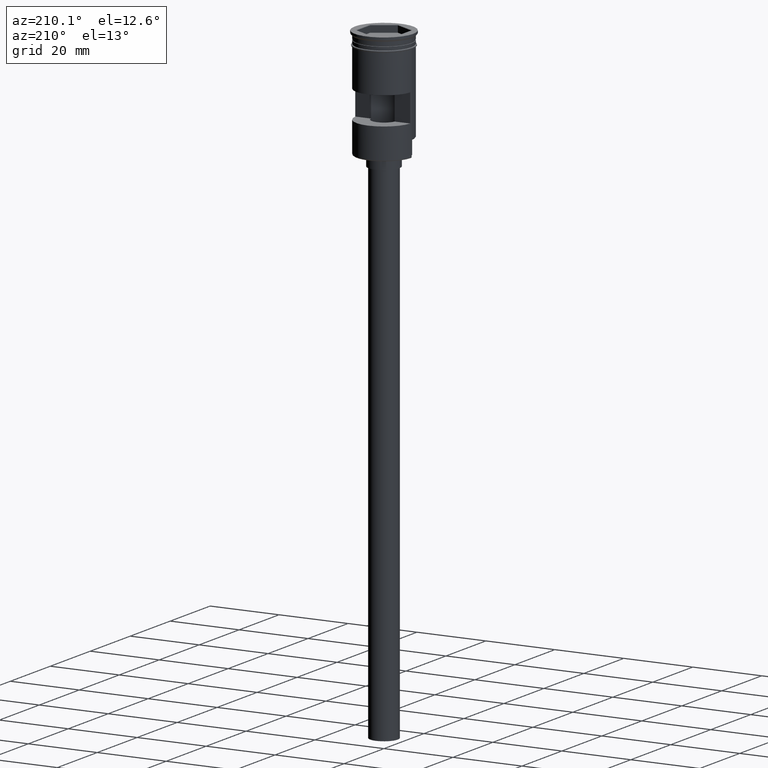
[diagram: clean part render]
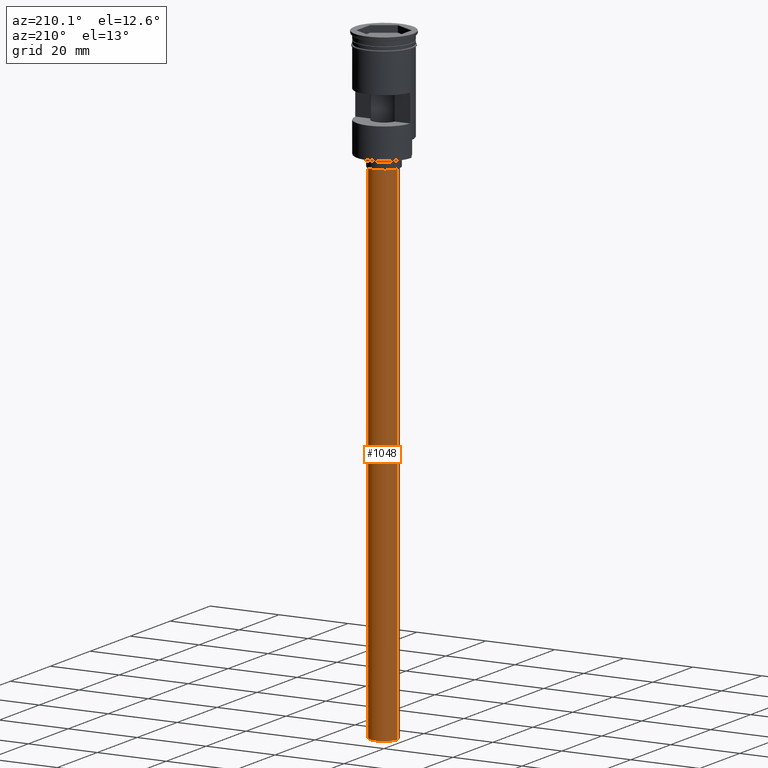
[diagram: same view with one face highlighted and labeled with its STEP entity id]
A machine part, auxiliary view. The second image highlights one B-rep face of the part: STEP entity #1048.
In plain terms, the highlighted cylindrical surface (edge-blend (fillet) strip) has radius 4 mm, axis along (-0, -0, 1).
Its self-contained STEP definition (entity closure, byte-faithful):
#14 = CIRCLE ( 'NONE', #709, 4.000000000000000000 ) ;
#111 = ORIENTED_EDGE ( 'NONE', *, *, #1323, .T. ) ;
#122 = DIRECTION ( 'NONE',  ( -1.000000000000000000, 0.000000000000000000, 0.000000000000000000 ) ) ;
#125 = DIRECTION ( 'NONE',  ( -1.000000000000000000, 0.000000000000000000, 0.000000000000000000 ) ) ;
#149 = DIRECTION ( 'NONE',  ( -0.000000000000000000, -0.000000000000000000, 1.000000000000000000 ) ) ;
#191 = DIRECTION ( 'NONE',  ( -0.000000000000000000, -0.000000000000000000, 1.000000000000000000 ) ) ;
#208 = CARTESIAN_POINT ( 'NONE',  ( -4.000000000000000000, 4.898587196589412829E-16, -35.00000000000000000 ) ) ;
#338 = VERTEX_POINT ( 'NONE', #806 ) ;
#394 = VERTEX_POINT ( 'NONE', #427 ) ;
#411 = AXIS2_PLACEMENT_3D ( 'NONE', #1522, #417, #125 ) ;
#417 = DIRECTION ( 'NONE',  ( 0.000000000000000000, 0.000000000000000000, -1.000000000000000000 ) ) ;
#427 = CARTESIAN_POINT ( 'NONE',  ( -4.000000000000000000, 4.898587196589412829E-16, -182.0000000000000000 ) ) ;
#576 = VERTEX_POINT ( 'NONE', #208 ) ;
#600 = ORIENTED_EDGE ( 'NONE', *, *, #1294, .T. ) ;
#614 = VECTOR ( 'NONE', #882, 1000.000000000000000 ) ;
#627 = CARTESIAN_POINT ( 'NONE',  ( 4.000000000000000000, 0.000000000000000000, -35.00000000000000000 ) ) ;
#671 = CARTESIAN_POINT ( 'NONE',  ( 0.000000000000000000, 0.000000000000000000, -182.0000000000000000 ) ) ;
#676 = CARTESIAN_POINT ( 'NONE',  ( 0.000000000000000000, 0.000000000000000000, -182.0000000000000000 ) ) ;
#709 = AXIS2_PLACEMENT_3D ( 'NONE', #676, #1159, #122 ) ;
#760 = LINE ( 'NONE', #1249, #839 ) ;
#766 = EDGE_CURVE ( 'NONE', #394, #338, #14, .T. ) ;
#806 = CARTESIAN_POINT ( 'NONE',  ( 4.000000000000000000, 0.000000000000000000, -182.0000000000000000 ) ) ;
#829 = EDGE_LOOP ( 'NONE', ( #1343, #600, #111, #1378 ) ) ;
#839 = VECTOR ( 'NONE', #149, 1000.000000000000000 ) ;
#882 = DIRECTION ( 'NONE',  ( -0.000000000000000000, -0.000000000000000000, 1.000000000000000000 ) ) ;
#1048 = ADVANCED_FACE ( 'NONE', ( #1310 ), #1422, .T. ) ;
#1128 = LINE ( 'NONE', #1505, #614 ) ;
#1146 = DIRECTION ( 'NONE',  ( 1.000000000000000000, 0.000000000000000000, 0.000000000000000000 ) ) ;
#1159 = DIRECTION ( 'NONE',  ( 0.000000000000000000, 0.000000000000000000, -1.000000000000000000 ) ) ;
#1222 = CIRCLE ( 'NONE', #411, 4.000000000000000000 ) ;
#1249 = CARTESIAN_POINT ( 'NONE',  ( 4.000000000000000000, 0.000000000000000000, -182.0000000000000000 ) ) ;
#1286 = VERTEX_POINT ( 'NONE', #627 ) ;
#1294 = EDGE_CURVE ( 'NONE', #394, #576, #1128, .T. ) ;
#1310 = FACE_OUTER_BOUND ( 'NONE', #829, .T. ) ;
#1323 = EDGE_CURVE ( 'NONE', #576, #1286, #1222, .T. ) ;
#1343 = ORIENTED_EDGE ( 'NONE', *, *, #766, .F. ) ;
#1378 = ORIENTED_EDGE ( 'NONE', *, *, #1593, .F. ) ;
#1422 = CYLINDRICAL_SURFACE ( 'NONE', #1567, 4.000000000000000000 ) ;
#1505 = CARTESIAN_POINT ( 'NONE',  ( -4.000000000000000000, 4.898587196589412829E-16, -182.0000000000000000 ) ) ;
#1522 = CARTESIAN_POINT ( 'NONE',  ( 0.000000000000000000, 0.000000000000000000, -35.00000000000000000 ) ) ;
#1567 = AXIS2_PLACEMENT_3D ( 'NONE', #671, #191, #1146 ) ;
#1593 = EDGE_CURVE ( 'NONE', #338, #1286, #760, .T. ) ;